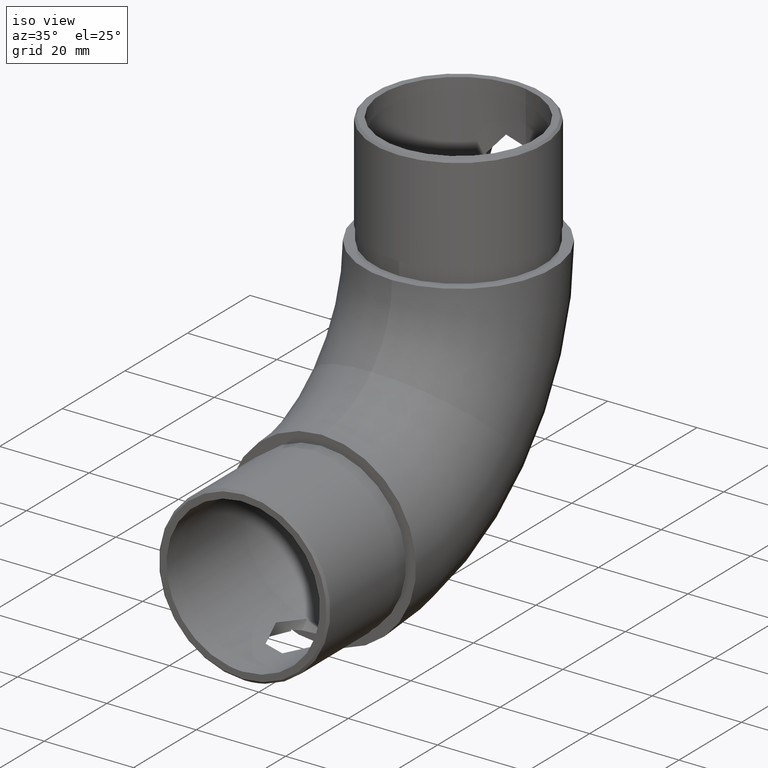
[diagram: clean part render]
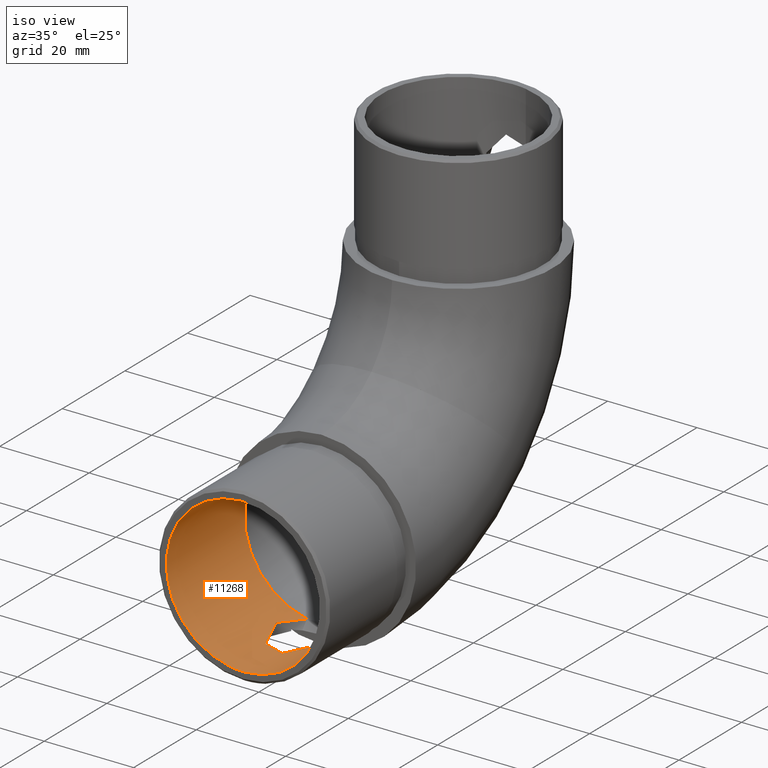
[diagram: same view with one face highlighted and labeled with its STEP entity id]
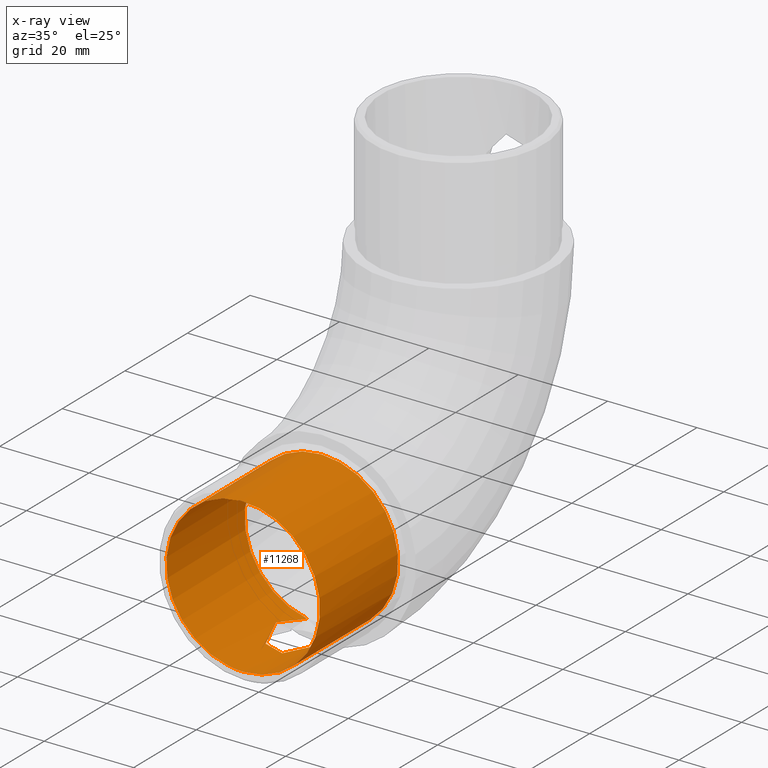
[diagram: x-ray of the same camera — body ghosted, the highlighted face saturated]
A machine part, iso view. The second image highlights one B-rep face of the part: STEP entity #11268.
The next image is the same camera in x-ray: the body ghosted, the highlighted face saturated — about 0% of this face is hidden behind the body in this view.
In plain terms, the highlighted cylindrical surface (bore or boss wall) has radius 17.2 mm, axis along (0, 1, 0).
Its self-contained STEP definition (entity closure, byte-faithful):
#835 = CARTESIAN_POINT ( 'NONE',  ( -3.214894469299242300, -6.938893903907228400E-015, -16.89687703545449100 ) ) ;
#943 = CARTESIAN_POINT ( 'NONE',  ( 5.660563179156307400, -8.686788679468900700, -16.24209161602771800 ) ) ;
#1001 = CARTESIAN_POINT ( 'NONE',  ( -5.187077245081096200, -10.15017945501925000, -16.40000248005016900 ) ) ;
#1114 = CARTESIAN_POINT ( 'NONE',  ( 2.034194537957767900, -14.13905674135194500, -17.08008073685130800 ) ) ;
#1175 = CARTESIAN_POINT ( 'NONE',  ( -2.361462580192828800, -13.93551684853209100, -17.03792055662270100 ) ) ;
#1232 = FACE_OUTER_BOUND ( 'NONE', #8408, .T. ) ;
#1344 = B_SPLINE_CURVE_WITH_KNOTS ( 'NONE', 3,
 ( #835, #15479, #3464, #10094, #16889, #16825, #2168, #4635, #7401, #11562, #3526, #2061, #15587, #8801, #10269, #10149, #2220, #3573, #5990, #11789, #1001, #15649, #2328, #6277, #14538, #11671, #9085, #15826, #1175, #2277, #3632, #10438, #3810, #6510, #15765, #13088, #7623, #12982, #1114, #15889, #13030, #17003, #17056, #10550, #10492, #8972, #11734, #3693, #7744, #14481, #943, #7861, #17185, #5029, #7681, #14426, #15706, #6389, #4919, #2453, #10380, #17121, #13144, #4979, #14300, #17241 ),
 .UNSPECIFIED., .F., .F.,
 ( 4, 2, 2, 2, 2, 2, 2, 2, 2, 2, 2, 2, 2, 2, 2, 2, 2, 2, 2, 2, 2, 2, 2, 2, 2, 2, 2, 2, 2, 2, 2, 2, 4 ),
 ( 8.430321994675647000E-018, 0.001156192426303210500, 0.001734288639454812500, 0.002312384852606414500, 0.003468577278909619400, 0.004624769705212825600, 0.005780962131516030400, 0.006937154557819235300, 0.009249539410425645900, 0.01040573183672884900, 0.01156192426303205400, 0.01387430911563845700, 0.01503050154194166000, 0.01560859775509326100, 0.01618669396824485400, 0.01734288639454805600, 0.01849907882085125400, 0.01965527124715445200, 0.02023336746030605200, 0.02081146367345765000, 0.02196765609976085400, 0.02312384852606405900, 0.02428004095236725700, 0.02543623337867045900, 0.02659242580497366400, 0.02774861823127686100, 0.03006100308388327800, 0.03121719551018648600, 0.03237338793648968800, 0.03352958036279289600, 0.03468577278909610500, 0.03584196521539930600, 0.03699815764170251400 ),
 .UNSPECIFIED. ) ;
#1866 = DIRECTION ( 'NONE',  ( 0.0000000000000000000, -1.000000000000000000, 0.0000000000000000000 ) ) ;
#2061 = CARTESIAN_POINT ( 'NONE',  ( -5.826809759443662500, -4.099477357396319900, -16.18327784492483100 ) ) ;
#2068 = CYLINDRICAL_SURFACE ( 'NONE', #15266, 17.19999999999999900 ) ;
#2168 = CARTESIAN_POINT ( 'NONE',  ( -4.711185650477312400, -1.460180603145789600, -16.54257768679803700 ) ) ;
#2220 = CARTESIAN_POINT ( 'NONE',  ( -5.905341733662999600, -7.558802323551179600, -16.15539363913756800 ) ) ;
#2277 = CARTESIAN_POINT ( 'NONE',  ( -1.870363164006590500, -14.24097142664754200, -17.10119034688749200 ) ) ;
#2328 = CARTESIAN_POINT ( 'NONE',  ( -4.350474900908386300, -11.85793267459673700, -16.64773117705627200 ) ) ;
#2355 = DIRECTION ( 'NONE',  ( 0.0000000000000000000, 1.000000000000000000, 0.0000000000000000000 ) ) ;
#2453 = CARTESIAN_POINT ( 'NONE',  ( 5.209987971557143100, -2.280179979837284600, -16.39273466249546700 ) ) ;
#2759 = ORIENTED_EDGE ( 'NONE', *, *, #11949, .T. ) ;
#3464 = CARTESIAN_POINT ( 'NONE',  ( -3.829146625131936200, -0.4584153275198164000, -16.77060226335883900 ) ) ;
#3526 = CARTESIAN_POINT ( 'NONE',  ( -5.636422627005464000, -3.353146681337232100, -16.25056718236516700 ) ) ;
#3573 = CARTESIAN_POINT ( 'NONE',  ( -5.661241084028675100, -8.683904451206041500, -16.24185335930641100 ) ) ;
#3632 = CARTESIAN_POINT ( 'NONE',  ( -1.521358443667093100, -14.40715194723049400, -17.13667152803400000 ) ) ;
#3693 = CARTESIAN_POINT ( 'NONE',  ( 5.187111394451005900, -10.15008887019298500, -16.39999140878810700 ) ) ;
#3810 = CARTESIAN_POINT ( 'NONE',  ( -0.3925146685419969600, -14.69990868076368100, -17.19998006681737800 ) ) ;
#3894 = ORIENTED_EDGE ( 'NONE', *, *, #13146, .T. ) ;
#3941 = CIRCLE ( 'NONE', #9312, 17.19999999999999900 ) ;
#4061 = EDGE_CURVE ( 'NONE', #12397, #4220, #1344, .T. ) ;
#4220 = VERTEX_POINT ( 'NONE', #13372 ) ;
#4635 = CARTESIAN_POINT ( 'NONE',  ( -5.028591614052309900, -1.940423932428610300, -16.44998034670952300 ) ) ;
#4919 = CARTESIAN_POINT ( 'NONE',  ( 5.514776508235699200, -2.988924950831993900, -16.29272734820546400 ) ) ;
#4965 = DIRECTION ( 'NONE',  ( 0.0000000000000000000, 0.0000000000000000000, 1.000000000000000000 ) ) ;
#4979 = CARTESIAN_POINT ( 'NONE',  ( 3.830419164302918000, -0.4592701278908228300, -16.77034496101483500 ) ) ;
#5029 = CARTESIAN_POINT ( 'NONE',  ( 6.002225191120622600, -5.640184599622547700, -16.11872511933971100 ) ) ;
#5860 = DIRECTION ( 'NONE',  ( -0.0000000000000000000, 1.000000000000000000, -0.0000000000000000000 ) ) ;
#5990 = CARTESIAN_POINT ( 'NONE',  ( -5.560962219645944100, -9.056824662626203400, -16.27671366798758300 ) ) ;
#6277 = CARTESIAN_POINT ( 'NONE',  ( -3.644197752288080800, -12.77665273130478400, -16.81125275058227000 ) ) ;
#6389 = CARTESIAN_POINT ( 'NONE',  ( 5.637590331046562000, -3.357125924127163200, -16.25015943329829000 ) ) ;
#6510 = CARTESIAN_POINT ( 'NONE',  ( 0.3907657755883366900, -14.70009111556793100, -17.20001988872584100 ) ) ;
#7157 = CARTESIAN_POINT ( 'NONE',  ( 0.0000000000000000000, -3.000000000000000000, 0.0000000000000000000 ) ) ;
#7271 = DIRECTION ( 'NONE',  ( 0.0000000000000000000, 0.0000000000000000000, -1.000000000000000000 ) ) ;
#7401 = CARTESIAN_POINT ( 'NONE',  ( -5.208549478096927000, -2.277528207283257900, -16.39318665054767600 ) ) ;
#7623 = CARTESIAN_POINT ( 'NONE',  ( 1.515473853836978300, -14.39440829139953200, -17.13400878956166600 ) ) ;
#7681 = CARTESIAN_POINT ( 'NONE',  ( 5.982751030475607300, -5.249420970287205900, -16.12603099442188200 ) ) ;
#7744 = CARTESIAN_POINT ( 'NONE',  ( 5.322736849589440500, -9.792945724899381000, -16.35616158641984400 ) ) ;
#7861 = CARTESIAN_POINT ( 'NONE',  ( 5.905718377453172100, -7.557545574774502000, -16.15526393225574600 ) ) ;
#8329 = CIRCLE ( 'NONE', #17301, 17.19999999999999900 ) ;
#8408 = EDGE_LOOP ( 'NONE', ( #3894 ) ) ;
#8801 = CARTESIAN_POINT ( 'NONE',  ( -5.982163359678958500, -5.242500997660453500, -16.12624886654499400 ) ) ;
#8972 = CARTESIAN_POINT ( 'NONE',  ( 4.707902404948580300, -11.18799378308434500, -16.54434726483125200 ) ) ;
#8981 = FACE_OUTER_BOUND ( 'NONE', #13016, .T. ) ;
#9016 = ORIENTED_EDGE ( 'NONE', *, *, #4061, .F. ) ;
#9085 = CARTESIAN_POINT ( 'NONE',  ( -2.825431933730413000, -13.58531044164180600, -16.96704795609452500 ) ) ;
#9312 = AXIS2_PLACEMENT_3D ( 'NONE', #17023, #2355, #11582 ) ;
#10094 = CARTESIAN_POINT ( 'NONE',  ( -4.229353398365332400, -0.8641363859850708100, -16.67247539718891500 ) ) ;
#10149 = CARTESIAN_POINT ( 'NONE',  ( -5.995385975557466600, -6.796526860840581100, -16.12127071634085200 ) ) ;
#10269 = CARTESIAN_POINT ( 'NONE',  ( -6.002054986799028500, -5.631168874818651900, -16.11878846445371100 ) ) ;
#10380 = CARTESIAN_POINT ( 'NONE',  ( 5.030113313309316300, -1.943411506452510200, -16.44949015405504500 ) ) ;
#10408 = CARTESIAN_POINT ( 'NONE',  ( 0.0000000000000000000, -24.99999999999999600, -17.19999999999999900 ) ) ;
#10438 = CARTESIAN_POINT ( 'NONE',  ( -0.7745820475818856500, -14.63909404585851300, -17.18662460244629400 ) ) ;
#10492 = CARTESIAN_POINT ( 'NONE',  ( 4.323036710563553900, -11.85003793152374000, -16.64905778333927300 ) ) ;
#10550 = CARTESIAN_POINT ( 'NONE',  ( 4.108613344503696800, -12.17312132159185500, -16.70379532306252600 ) ) ;
#11268 = ADVANCED_FACE ( 'NONE', ( #1232, #8981 ), #2068, .F. ) ;
#11562 = CARTESIAN_POINT ( 'NONE',  ( -5.512352000149001600, -2.982602595745786000, -16.29354263663772800 ) ) ;
#11582 = DIRECTION ( 'NONE',  ( 0.0000000000000000000, 0.0000000000000000000, 1.000000000000000000 ) ) ;
#11671 = CARTESIAN_POINT ( 'NONE',  ( -2.970817005380579400, -13.45941578563776300, -16.94208764880041700 ) ) ;
#11734 = CARTESIAN_POINT ( 'NONE',  ( 4.879672238733989300, -10.84760393937997100, -16.49407898820956200 ) ) ;
#11789 = CARTESIAN_POINT ( 'NONE',  ( -5.323171807079321900, -9.791966412301459100, -16.35602490063827100 ) ) ;
#11949 = EDGE_CURVE ( 'NONE', #12397, #4220, #3941, .T. ) ;
#12397 = VERTEX_POINT ( 'NONE', #16048 ) ;
#12930 = VERTEX_POINT ( 'NONE', #10408 ) ;
#12982 = CARTESIAN_POINT ( 'NONE',  ( 1.865442708846779100, -14.23125713288373900, -17.09944565482899700 ) ) ;
#13016 = EDGE_LOOP ( 'NONE', ( #2759, #9016 ) ) ;
#13030 = CARTESIAN_POINT ( 'NONE',  ( 2.830820505615126300, -13.59169970442116500, -16.96781282996898800 ) ) ;
#13088 = CARTESIAN_POINT ( 'NONE',  ( 1.332745236102430300, -14.46578926227059900, -17.14929985289861800 ) ) ;
#13144 = CARTESIAN_POINT ( 'NONE',  ( 4.367937151445899800, -1.005070156371637100, -16.63844061583638000 ) ) ;
#13146 = EDGE_CURVE ( 'NONE', #12930, #12930, #8329, .T. ) ;
#13372 = CARTESIAN_POINT ( 'NONE',  ( 3.214894469299242300, -6.938893903907228400E-015, -16.89687703545449100 ) ) ;
#14300 = CARTESIAN_POINT ( 'NONE',  ( 3.536222285327457200, -0.2148914782592628600, -16.83573940532238600 ) ) ;
#14426 = CARTESIAN_POINT ( 'NONE',  ( 5.895002166504104600, -4.480155907825896100, -16.15831473213169300 ) ) ;
#14481 = CARTESIAN_POINT ( 'NONE',  ( 5.559324051659923600, -9.062251338953727100, -16.27726836725649700 ) ) ;
#14538 = CARTESIAN_POINT ( 'NONE',  ( -3.388999711730561200, -13.06399482919127700, -16.86520178563736000 ) ) ;
#15070 = CARTESIAN_POINT ( 'NONE',  ( 0.0000000000000000000, -24.99999999999999600, 0.0000000000000000000 ) ) ;
#15266 = AXIS2_PLACEMENT_3D ( 'NONE', #7157, #5860, #4965 ) ;
#15479 = CARTESIAN_POINT ( 'NONE',  ( -3.536263036862225200, -0.2149187312921794800, -16.83573165170713200 ) ) ;
#15587 = CARTESIAN_POINT ( 'NONE',  ( -5.894504963324231500, -4.477587218398314300, -16.15849597595566300 ) ) ;
#15649 = CARTESIAN_POINT ( 'NONE',  ( -4.725838897725458000, -11.19659335686462500, -16.54115635259830700 ) ) ;
#15706 = CARTESIAN_POINT ( 'NONE',  ( 5.827156116918191100, -4.101438133993468700, -16.18315043300858500 ) ) ;
#15765 = CARTESIAN_POINT ( 'NONE',  ( 0.7751885838068631700, -14.63879371042488800, -17.18656056037579900 ) ) ;
#15826 = CARTESIAN_POINT ( 'NONE',  ( -2.520751436758839900, -13.82345483602841800, -17.01498146195384100 ) ) ;
#15889 = CARTESIAN_POINT ( 'NONE',  ( 2.524058440900391400, -13.83441456975809600, -17.01697830313551300 ) ) ;
#16048 = CARTESIAN_POINT ( 'NONE',  ( -3.214894469299242300, -6.938893903907228400E-015, -16.89687703545449100 ) ) ;
#16825 = CARTESIAN_POINT ( 'NONE',  ( -4.596915539415627800, -1.303832692336521500, -16.57479734399029100 ) ) ;
#16889 = CARTESIAN_POINT ( 'NONE',  ( -4.356192777601314100, -1.006165267695621200, -16.63968521202376700 ) ) ;
#17003 = CARTESIAN_POINT ( 'NONE',  ( 3.387939613123186700, -13.06508950038438000, -16.86541082054338500 ) ) ;
#17023 = CARTESIAN_POINT ( 'NONE',  ( 0.0000000000000000000, -6.938893903907228400E-015, -6.938893903907228400E-015 ) ) ;
#17056 = CARTESIAN_POINT ( 'NONE',  ( 3.641433579581176100, -12.77965993265215000, -16.81182450821141200 ) ) ;
#17121 = CARTESIAN_POINT ( 'NONE',  ( 4.610519789773762000, -1.307196160459183100, -16.57199063302866900 ) ) ;
#17185 = CARTESIAN_POINT ( 'NONE',  ( 5.994938003216371500, -6.796384723834439300, -16.12143744238136700 ) ) ;
#17241 = CARTESIAN_POINT ( 'NONE',  ( 3.214894469299242300, -6.938893903907228400E-015, -16.89687703545449100 ) ) ;
#17301 = AXIS2_PLACEMENT_3D ( 'NONE', #15070, #1866, #7271 ) ;